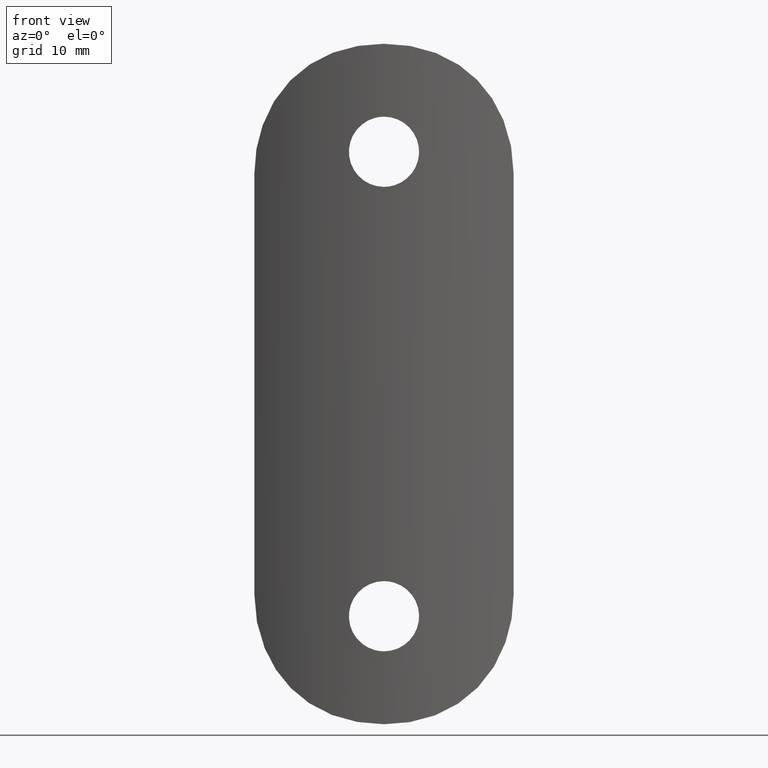
[diagram: clean part render]
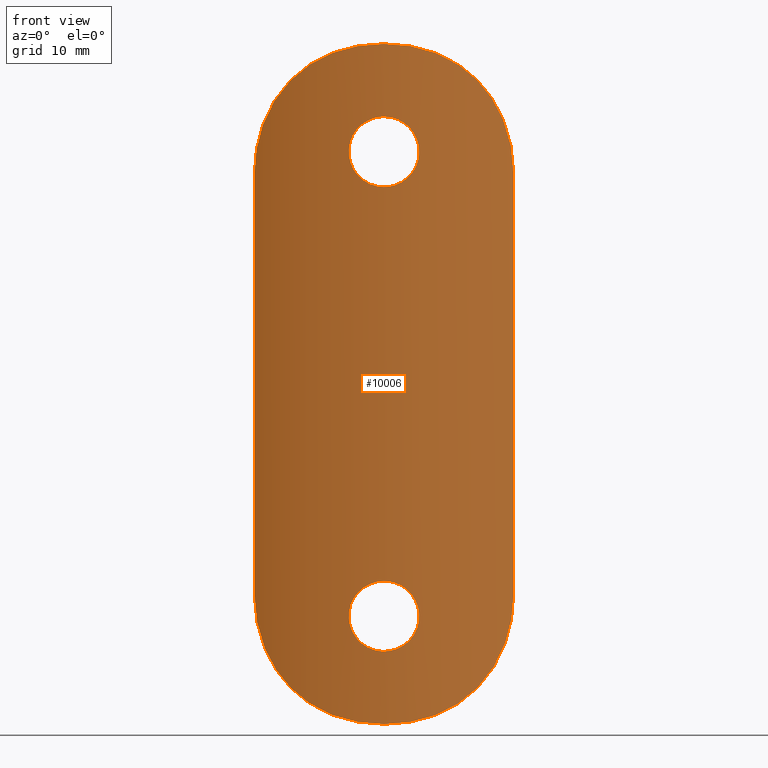
[diagram: same view with one face highlighted and labeled with its STEP entity id]
A machine part, front view. The second image highlights one B-rep face of the part: STEP entity #10006.
In plain terms, the highlighted cylindrical surface (partial cylindrical patch) has radius 25.2 mm, axis along (-0, -0, -1).
Its self-contained STEP definition (entity closure, byte-faithful):
#29 = CARTESIAN_POINT ( 'NONE',  ( 8.070018011858289600, -2.675033751623812500, -28.68965972254910900 ) ) ;
#81 = CARTESIAN_POINT ( 'NONE',  ( -3.971604063489195800, -3.688143116275659500, -30.94069939061653000 ) ) ;
#365 = CARTESIAN_POINT ( 'NONE',  ( 2.448293202745678500, -3.881237321424444000, 23.64783916201493200 ) ) ;
#416 = CARTESIAN_POINT ( 'NONE',  ( 2.584372539048636500, -3.867409336745677000, 19.51800404352745500 ) ) ;
#432 = CARTESIAN_POINT ( 'NONE',  ( 3.228884920486573100, -3.792319949075413800, -21.07338228239292700 ) ) ;
#440 = B_SPLINE_CURVE_WITH_KNOTS ( 'NONE', 3,
 ( #9769, #14203, #13107, #4400, #14156, #7628, #12054, #3225, #8713, #9815, #2249, #29, #4357, #2289, #5740, #3444, #6664, #12278, #9949, #10993, #13362, #9904, #11174, #11088 ),
 .UNSPECIFIED., .F., .F.,
 ( 4, 2, 2, 2, 2, 2, 2, 2, 2, 2, 2, 4 ),
 ( 6.655147492005019600E-020, 0.002404719628250255700, 0.003607079442375383300, 0.004809439256500511400, 0.007214158884750770900, 0.008416518698875899400, 0.009618878513001031400, 0.01082123832712616000, 0.01202359814125129000, 0.01442831776950155100, 0.01683303739775180900, 0.01923775702600207000 ),
 .UNSPECIFIED. ) ;
#461 = CARTESIAN_POINT ( 'NONE',  ( 1.442084102744212400, -3.959475360728427900, 24.42031980687430700 ) ) ;
#474 = CARTESIAN_POINT ( 'NONE',  ( 1.047374103152517900, -3.978995375030609100, -18.41603188571118800 ) ) ;
#486 = ORIENTED_EDGE ( 'NONE', *, *, #4471, .T. ) ;
#497 = VERTEX_POINT ( 'NONE', #9025 ) ;
#501 = CARTESIAN_POINT ( 'NONE',  ( -7.461081916255326800, -2.872280406970613200, 29.18403922431020400 ) ) ;
#552 = CARTESIAN_POINT ( 'NONE',  ( -10.86122045950696200, -1.541448732340302300, 24.94936520890066900 ) ) ;
#557 = CARTESIAN_POINT ( 'NONE',  ( 2.820323020819258000, -3.841965843614789700, 23.12909165509455500 ) ) ;
#559 = CARTESIAN_POINT ( 'NONE',  ( 3.980101605057122000E-016, -4.000000000000001800, -18.25000000000000000 ) ) ;
#633 = CARTESIAN_POINT ( 'NONE',  ( 11.71599125575619200, -1.111027788990791800, 22.28988272980836200 ) ) ;
#657 = CARTESIAN_POINT ( 'NONE',  ( -0.2149243243844239400, -4.000000000000000900, -24.75000000000000400 ) ) ;
#708 = CARTESIAN_POINT ( 'NONE',  ( -0.4273856275697969200, -3.997251474127010400, -24.72888809123269000 ) ) ;
#841 = CARTESIAN_POINT ( 'NONE',  ( 6.160525285184449200, -3.245138553629468300, 30.04837552026781500 ) ) ;
#896 = CARTESIAN_POINT ( 'NONE',  ( 8.909917177937140700, -2.374086248459208000, 27.86910506856552800 ) ) ;
#1023 = CARTESIAN_POINT ( 'NONE',  ( -11.99999999999999800, -0.9594223751432680000, -20.31274261880711800 ) ) ;
#1059 = VERTEX_POINT ( 'NONE', #3682 ) ;
#1113 = CARTESIAN_POINT ( 'NONE',  ( 11.99999999999999800, -0.9594223751432641200, 19.50000000000000000 ) ) ;
#1152 = CARTESIAN_POINT ( 'NONE',  ( -4.060108814589744000E-015, -4.000000000000000000, -31.50000000000000000 ) ) ;
#1195 = CARTESIAN_POINT ( 'NONE',  ( -7.490020082081475300, -2.871071223889374700, -29.18960834183335300 ) ) ;
#1473 = CARTESIAN_POINT ( 'NONE',  ( 2.921132622535350900, -3.830254687221836800, 22.94023643816554900 ) ) ;
#1556 = VERTEX_POINT ( 'NONE', #3301 ) ;
#1609 = CARTESIAN_POINT ( 'NONE',  ( -6.152177999487239600, -3.247060572112983500, 30.05227158300981600 ) ) ;
#1656 = CARTESIAN_POINT ( 'NONE',  ( -4.340547476338980600, -3.626235214990995500, 30.82211531279922700 ) ) ;
#1662 = CARTESIAN_POINT ( 'NONE',  ( 3.145745220927480100, -3.802921007966615400, 22.34413334551513600 ) ) ;
#1666 = CARTESIAN_POINT ( 'NONE',  ( -3.249847411044275000, -3.789567659892699100, -21.28283633187031000 ) ) ;
#1714 = CARTESIAN_POINT ( 'NONE',  ( -2.150080745667855900, -3.908558688004724100, -23.94631799422705100 ) ) ;
#1727 = CARTESIAN_POINT ( 'NONE',  ( 3.145789730916917400, -3.802915054760238600, -20.65637243076135100 ) ) ;
#1815 = CARTESIAN_POINT ( 'NONE',  ( 3.980101605049233400E-016, -3.999999999999999100, 18.25000000000000400 ) ) ;
#1834 = CARTESIAN_POINT ( 'NONE',  ( 11.99999999999999800, -0.9594223751432641200, 31.50000000000000000 ) ) ;
#1835 = CARTESIAN_POINT ( 'NONE',  ( -1.052288302275508500, -3.978779976237182900, 24.58220157696789000 ) ) ;
#1931 = CARTESIAN_POINT ( 'NONE',  ( -1.443071850375213800, -3.959408089172589600, 24.41972958796253200 ) ) ;
#1938 = CARTESIAN_POINT ( 'NONE',  ( -1.430077016675846200E-015, -4.000000000000000000, 31.50000000000000000 ) ) ;
#2035 = CARTESIAN_POINT ( 'NONE',  ( 10.86334236761369500, -1.540439642348692800, 24.94502513748647500 ) ) ;
#2139 = CARTESIAN_POINT ( 'NONE',  ( -12.00000000000001100, -0.9594223751432616700, 31.50000000000000000 ) ) ;
#2249 = CARTESIAN_POINT ( 'NONE',  ( 7.461081916255317900, -2.872280406970613600, -29.18403922431020800 ) ) ;
#2289 = CARTESIAN_POINT ( 'NONE',  ( 8.904526323337204700, -2.376129620349473300, -27.87499940745014000 ) ) ;
#2421 = CARTESIAN_POINT ( 'NONE',  ( -9.655711293404406700, -2.078237200720401700, -26.96281491189223800 ) ) ;
#2447 = CARTESIAN_POINT ( 'NONE',  ( -3.237414360353812700E-016, -3.999999999999998200, -24.74999999999999600 ) ) ;
#2491 = CARTESIAN_POINT ( 'NONE',  ( 11.99999999999999800, -0.9594223751432641200, -19.50000000000000400 ) ) ;
#2566 = CARTESIAN_POINT ( 'NONE',  ( -1.430077016675846200E-015, -4.000000000000000000, 31.50000000000000000 ) ) ;
#2567 = CARTESIAN_POINT ( 'NONE',  ( 3.228884920486573100, -3.792319949075414700, 21.07338228239293800 ) ) ;
#2674 = CARTESIAN_POINT ( 'NONE',  ( 0.4278075634889013100, -3.997231405282156500, -18.27127346366641800 ) ) ;
#2677 = EDGE_CURVE ( 'NONE', #12522, #7204, #5048, .T. ) ;
#2701 = CARTESIAN_POINT ( 'NONE',  ( -8.904526323337210100, -2.376129620349471500, 27.87499940745014000 ) ) ;
#2724 = CARTESIAN_POINT ( 'NONE',  ( 2.448293202745678100, -3.881237321424443100, -23.64783916201492900 ) ) ;
#2725 = CARTESIAN_POINT ( 'NONE',  ( -1.047883688939818000, -3.978965056323733800, 18.41629329927628000 ) ) ;
#2760 = CARTESIAN_POINT ( 'NONE',  ( -3.084362919498955700, -3.810666350970388600, -22.54620186323490900 ) ) ;
#2775 = CARTESIAN_POINT ( 'NONE',  ( 2.148846319067987800, -3.908665131329721800, -23.94740927707720600 ) ) ;
#2808 = CARTESIAN_POINT ( 'NONE',  ( -2.821828598245091700, -3.841791516722734100, -23.12630701370350600 ) ) ;
#2820 = CARTESIAN_POINT ( 'NONE',  ( 1.630984209508580700, -3.947783067614378400, -18.68092628248565700 ) ) ;
#2907 = CARTESIAN_POINT ( 'NONE',  ( -1.628195372474675200, -3.947974969575132100, -18.67917581154562300 ) ) ;
#2962 = CARTESIAN_POINT ( 'NONE',  ( -2.583679911184205500, -3.867482257557316200, -19.51704657700166500 ) ) ;
#3032 = CARTESIAN_POINT ( 'NONE',  ( -0.8474431673034958900, -3.986623044847432200, 24.64487151701752800 ) ) ;
#3087 = CARTESIAN_POINT ( 'NONE',  ( -2.586224168663152400, -3.867219302393778900, 23.47965544732352300 ) ) ;
#3136 = CARTESIAN_POINT ( 'NONE',  ( 11.41391696054181700, -1.267241225314089400, 23.45119720436173300 ) ) ;
#3160 = LINE ( 'NONE', #1834, #6238 ) ;
#3217 = ORIENTED_EDGE ( 'NONE', *, *, #13697, .F. ) ;
#3225 = CARTESIAN_POINT ( 'NONE',  ( 5.452304225355308500, -3.414662459839250500, -30.40220668051475900 ) ) ;
#3245 = CARTESIAN_POINT ( 'NONE',  ( 7.490020082081473500, -2.871071223889372100, 29.18960834183335600 ) ) ;
#3289 = ORIENTED_EDGE ( 'NONE', *, *, #4102, .T. ) ;
#3301 = CARTESIAN_POINT ( 'NONE',  ( -3.813032804843664200E-016, -3.999999999999998200, 24.75000000000000000 ) ) ;
#3317 = CARTESIAN_POINT ( 'NONE',  ( -11.41391696054182100, -1.267241225314089200, -23.45119720436174000 ) ) ;
#3342 = VERTEX_POINT ( 'NONE', #8508 ) ;
#3373 = B_SPLINE_CURVE_WITH_KNOTS ( 'NONE', 3,
 ( #9335, #8208, #9290, #12643, #2725, #10377, #7212, #8303, #8405, #11829, #9587, #6356, #10678, #11685, #8589, #14022, #9687, #11783, #12988, #6405, #8445, #5261, #4227, #3087, #7495, #6302, #9638, #12892, #1931, #1835, #3032, #13976, #6450, #11739 ),
 .UNSPECIFIED., .F., .F.,
 ( 4, 2, 2, 2, 2, 2, 2, 2, 2, 2, 2, 2, 2, 2, 2, 2, 4 ),
 ( 0.01017157156450930100, 0.01080714202623246500, 0.01144271248795562800, 0.01207828294967879300, 0.01271385341140195700, 0.01334942387312512000, 0.01398499433484828300, 0.01462056479657144700, 0.01525613525829460800, 0.01589170572001777400, 0.01652727618174093500, 0.01716284664346409700, 0.01779841710518726200, 0.01843398756691042400, 0.01906955802863358900, 0.01970512849035675100, 0.02034069895207991600 ),
 .UNSPECIFIED. ) ;
#3444 = CARTESIAN_POINT ( 'NONE',  ( 9.647921971715934600, -2.081454063450988400, -26.97324947382548300 ) ) ;
#3486 = AXIS2_PLACEMENT_3D ( 'NONE', #13397, #11115, #5683 ) ;
#3492 = CARTESIAN_POINT ( 'NONE',  ( -5.457864477615493600, -3.413351149534353800, -30.39947326146852500 ) ) ;
#3578 = CARTESIAN_POINT ( 'NONE',  ( -1.611978675888157100, -3.960820225964582600, 31.43672536682949600 ) ) ;
#3628 = B_SPLINE_CURVE_WITH_KNOTS ( 'NONE', 3,
 ( #6203, #10588, #11541, #633, #9395, #3136, #4327, #2035, #8551, #7459, #11978, #14029, #896, #13931, #3245, #841, #10879, #4289, #9696, #12900, #12949, #8646, #12850, #1938 ),
 .UNSPECIFIED., .F., .F.,
 ( 4, 2, 2, 2, 2, 2, 2, 2, 2, 2, 2, 4 ),
 ( 0.0000000000000000000, 0.002403755772613356100, 0.003605633658920034400, 0.004807511545226713200, 0.007211267317840058500, 0.008413145204146725900, 0.009615023090453391600, 0.01201877886306673300, 0.01442253463568007400, 0.01562441252198674400, 0.01682629040829341700, 0.01923004618090676200 ),
 .UNSPECIFIED. ) ;
#3682 = CARTESIAN_POINT ( 'NONE',  ( -4.060108814589744000E-015, -4.000000000000000000, -31.50000000000000000 ) ) ;
#3726 = CARTESIAN_POINT ( 'NONE',  ( 1.048575703819335700, -3.978945489830351800, 24.58356341383954200 ) ) ;
#3745 = CARTESIAN_POINT ( 'NONE',  ( 0.8420286645357342200, -3.986786607900433000, -24.64617266009791800 ) ) ;
#3772 = CARTESIAN_POINT ( 'NONE',  ( 0.2149759820200501700, -4.000000000000003600, 24.75000000000000000 ) ) ;
#3791 = CARTESIAN_POINT ( 'NONE',  ( 1.048575703819336000, -3.978945489830352700, -24.58356341383954200 ) ) ;
#3840 = CARTESIAN_POINT ( 'NONE',  ( 3.980101605057122000E-016, -4.000000000000001800, -18.25000000000000000 ) ) ;
#4081 = CARTESIAN_POINT ( 'NONE',  ( -3.228577495374705700, -3.792359537829471900, -21.07144474021118100 ) ) ;
#4102 = EDGE_CURVE ( 'NONE', #3342, #1059, #4750, .T. ) ;
#4227 = CARTESIAN_POINT ( 'NONE',  ( -2.821828598245089500, -3.841791516722735400, 23.12630701370351400 ) ) ;
#4289 = CARTESIAN_POINT ( 'NONE',  ( 4.349982336097550500, -3.624564216562080600, 30.81886323569778700 ) ) ;
#4327 = CARTESIAN_POINT ( 'NONE',  ( 11.28833695153357500, -1.330832197223991600, 23.83377837251705600 ) ) ;
#4357 = CARTESIAN_POINT ( 'NONE',  ( 8.358390092009223300, -2.575234846123539700, -28.42775120624607900 ) ) ;
#4399 = FACE_OUTER_BOUND ( 'NONE', #11576, .T. ) ;
#4400 = CARTESIAN_POINT ( 'NONE',  ( 2.792776424909799700, -3.847888878390024500, -31.23648069177836100 ) ) ;
#4471 = EDGE_CURVE ( 'NONE', #9728, #12522, #3628, .T. ) ;
#4532 = CARTESIAN_POINT ( 'NONE',  ( -9.168061832152750100, -2.274576247429996600, -27.57751229447801600 ) ) ;
#4668 = CARTESIAN_POINT ( 'NONE',  ( -2.792776424909805000, -3.847888878390025800, 31.23648069177835400 ) ) ;
#4750 = B_SPLINE_CURVE_WITH_KNOTS ( 'NONE', 3,
 ( #5492, #1023, #10765, #7684, #10866, #3317, #10959, #6446, #14067, #7533, #2421, #4532, #5745, #13323, #1195, #7776, #3492, #8810, #81, #6765, #8852, #5664, #8892, #1152 ),
 .UNSPECIFIED., .F., .F.,
 ( 4, 2, 2, 2, 2, 2, 2, 2, 2, 2, 2, 4 ),
 ( 1.084202172485504400E-019, 0.002403755772613352200, 0.003605633658920027900, 0.004807511545226703600, 0.007211267317840045500, 0.008413145204146713800, 0.009615023090453381200, 0.01201877886306672300, 0.01442253463568006000, 0.01562441252198673200, 0.01682629040829340700, 0.01923004618090675500 ),
 .UNSPECIFIED. ) ;
#4818 = CARTESIAN_POINT ( 'NONE',  ( 2.819586614385453300, -3.842043119532628100, 19.86990162381512100 ) ) ;
#4845 = VERTEX_POINT ( 'NONE', #2491 ) ;
#4860 = CARTESIAN_POINT ( 'NONE',  ( -0.8120060809979359200, -4.000000000000002700, 31.49999999999999300 ) ) ;
#4865 = CARTESIAN_POINT ( 'NONE',  ( 0.8447587679019650200, -3.986700308431998100, 18.35451482568179000 ) ) ;
#4881 = CARTESIAN_POINT ( 'NONE',  ( 0.2122230471317226300, -4.000000000000000900, -18.25000000000000400 ) ) ;
#4909 = CARTESIAN_POINT ( 'NONE',  ( -9.647921971715938100, -2.081454063450993300, 26.97324947382547900 ) ) ;
#4967 = CARTESIAN_POINT ( 'NONE',  ( -3.813032804843664200E-016, -3.999999999999998200, 24.75000000000000000 ) ) ;
#5038 = CARTESIAN_POINT ( 'NONE',  ( 3.084330026343578400, -3.810670690545057100, -20.45366553155928100 ) ) ;
#5048 = B_SPLINE_CURVE_WITH_KNOTS ( 'NONE', 3,
 ( #2566, #4860, #3578, #4668, #12379, #9126, #1656, #11458, #1609, #13609, #501, #9265, #8182, #2701, #7134, #4909, #13655, #12569, #552, #6024, #10351, #11982, #13083, #14177 ),
 .UNSPECIFIED., .F., .F.,
 ( 4, 2, 2, 2, 2, 2, 2, 2, 2, 2, 2, 4 ),
 ( 3.487617001206990300E-018, 0.002404719628250263100, 0.003607079442375393300, 0.004809439256500523500, 0.007214158884750779600, 0.008416518698875908100, 0.009618878513001033100, 0.01082123832712616300, 0.01202359814125129400, 0.01442831776950155400, 0.01683303739775181600, 0.01923775702600207700 ),
 .UNSPECIFIED. ) ;
#5231 = ORIENTED_EDGE ( 'NONE', *, *, #8174, .T. ) ;
#5261 = CARTESIAN_POINT ( 'NONE',  ( -2.921508016636387600, -3.830212081551999800, 22.93966102487552300 ) ) ;
#5492 = CARTESIAN_POINT ( 'NONE',  ( -12.00000000000001100, -0.9594223751432616700, -19.50000000000000400 ) ) ;
#5526 = VERTEX_POINT ( 'NONE', #11928 ) ;
#5664 = CARTESIAN_POINT ( 'NONE',  ( -1.614628932622137000, -3.960784208731629200, -31.43669996251908200 ) ) ;
#5683 = DIRECTION ( 'NONE',  ( -1.000000000000000000, 0.0000000000000000000, 0.0000000000000000000 ) ) ;
#5740 = CARTESIAN_POINT ( 'NONE',  ( 9.162288598564817500, -2.276817699967490900, -27.58415630336390800 ) ) ;
#5745 = CARTESIAN_POINT ( 'NONE',  ( -8.909917177937144200, -2.374086248459204000, -27.86910506856552800 ) ) ;
#5888 = CARTESIAN_POINT ( 'NONE',  ( 3.145789730916917400, -3.802915054760238600, 20.65637243076135100 ) ) ;
#5925 = CARTESIAN_POINT ( 'NONE',  ( 1.630984209508580700, -3.947783067614378400, 18.68092628248566100 ) ) ;
#5926 = FACE_BOUND ( 'NONE', #11631, .T. ) ;
#5947 = CARTESIAN_POINT ( 'NONE',  ( 2.146749842079460600, -3.908855626522028900, -19.05052656596651100 ) ) ;
#5975 = CARTESIAN_POINT ( 'NONE',  ( 3.249921466792945200, -3.789558028622972400, 21.71342183589956300 ) ) ;
#5999 = CARTESIAN_POINT ( 'NONE',  ( 3.229257522345796400, -3.792272161209743000, -21.92446431460341200 ) ) ;
#6024 = CARTESIAN_POINT ( 'NONE',  ( -11.42733513922664000, -1.262315373341881700, 23.47153338559775200 ) ) ;
#6077 = CARTESIAN_POINT ( 'NONE',  ( -0.4232016262251696600, -3.997320671551197100, -18.27057619256268200 ) ) ;
#6093 = CARTESIAN_POINT ( 'NONE',  ( 3.249921466792945200, -3.789558028622972000, -21.71342183589956300 ) ) ;
#6128 = CARTESIAN_POINT ( 'NONE',  ( -1.631637408973497700, -3.947752285963282300, -24.31885370546396900 ) ) ;
#6143 = CARTESIAN_POINT ( 'NONE',  ( 2.449887203856966300, -3.881092847927759800, -19.35372236724093800 ) ) ;
#6178 = CARTESIAN_POINT ( 'NONE',  ( -2.819535138527144500, -3.842050439590970700, -19.86974610448299600 ) ) ;
#6203 = CARTESIAN_POINT ( 'NONE',  ( 11.99999999999999800, -0.9594223751432641200, 19.50000000000000000 ) ) ;
#6238 = VECTOR ( 'NONE', #13874, 1000.000000000000000 ) ;
#6302 = CARTESIAN_POINT ( 'NONE',  ( -2.150080745667852300, -3.908558688004723200, 23.94631799422705100 ) ) ;
#6356 = CARTESIAN_POINT ( 'NONE',  ( -2.819535138527144500, -3.842050439590969800, 19.86974610448300300 ) ) ;
#6357 = EDGE_LOOP ( 'NONE', ( #5231, #11805 ) ) ;
#6402 = CARTESIAN_POINT ( 'NONE',  ( -1.430077016675846200E-015, -4.000000000000000000, 31.50000000000000000 ) ) ;
#6405 = CARTESIAN_POINT ( 'NONE',  ( -3.146823393865464600, -3.802784378313663000, 22.33958662307775400 ) ) ;
#6446 = CARTESIAN_POINT ( 'NONE',  ( -10.86334236761369700, -1.540439642348695200, -24.94502513748647800 ) ) ;
#6450 = CARTESIAN_POINT ( 'NONE',  ( -0.2149243243844244400, -4.000000000000004400, 24.75000000000000400 ) ) ;
#6664 = CARTESIAN_POINT ( 'NONE',  ( 9.876756645886438000, -1.984972568899343100, -26.65162954762824300 ) ) ;
#6711 = B_SPLINE_CURVE_WITH_KNOTS ( 'NONE', 3,
 ( #559, #12717, #6077, #8434, #10509, #9527, #2907, #9370, #7244, #13710, #2962, #6178, #10609, #8337, #13812, #4081, #1666, #7142, #13662, #10565, #2760, #9316, #2808, #11625, #8238, #1714, #7294, #6128, #12775, #11722, #10406, #708, #657, #11571 ),
 .UNSPECIFIED., .F., .F.,
 ( 4, 2, 2, 2, 2, 2, 2, 2, 2, 2, 2, 2, 2, 2, 2, 2, 4 ),
 ( 0.01017157156450930100, 0.01080714202623246500, 0.01144271248795562800, 0.01207828294967879100, 0.01271385341140195500, 0.01334942387312511600, 0.01398499433484828000, 0.01462056479657144300, 0.01525613525829460700, 0.01589170572001777000, 0.01652727618174093500, 0.01716284664346409700, 0.01779841710518725900, 0.01843398756691042000, 0.01906955802863358500, 0.01970512849035675100, 0.02034069895207991200 ),
 .UNSPECIFIED. ) ;
#6765 = CARTESIAN_POINT ( 'NONE',  ( -3.196476755381119100, -3.799516854644442900, -31.14900833836189500 ) ) ;
#6941 = ORIENTED_EDGE ( 'NONE', *, *, #9796, .F. ) ;
#7004 = CARTESIAN_POINT ( 'NONE',  ( 2.921303650117720100, -3.830236217145516000, 20.05989843585232900 ) ) ;
#7018 = CARTESIAN_POINT ( 'NONE',  ( 2.921303650117720100, -3.830236217145515500, -20.05989843585232200 ) ) ;
#7046 = CARTESIAN_POINT ( 'NONE',  ( 2.449887203856966300, -3.881092847927760700, 19.35372236724093800 ) ) ;
#7065 = CARTESIAN_POINT ( 'NONE',  ( 1.982795539817884300, -3.922492403317331600, -18.91624150437298700 ) ) ;
#7134 = CARTESIAN_POINT ( 'NONE',  ( -9.162288598564821000, -2.276817699967493600, 27.58415630336389800 ) ) ;
#7142 = CARTESIAN_POINT ( 'NONE',  ( -3.250150967301145500, -3.789528181083724200, -21.71257220791566000 ) ) ;
#7157 = CARTESIAN_POINT ( 'NONE',  ( 1.442084102744212800, -3.959475360728428300, -24.42031980687431100 ) ) ;
#7204 = VERTEX_POINT ( 'NONE', #13042 ) ;
#7212 = CARTESIAN_POINT ( 'NONE',  ( -1.628195372474674900, -3.947974969575128500, 18.67917581154562300 ) ) ;
#7244 = CARTESIAN_POINT ( 'NONE',  ( -2.146681953387287800, -3.908851214023944200, -19.05068869743568900 ) ) ;
#7294 = CARTESIAN_POINT ( 'NONE',  ( -1.986728131441103400, -3.922193315916383300, -24.08090840188300100 ) ) ;
#7296 = ORIENTED_EDGE ( 'NONE', *, *, #13598, .F. ) ;
#7326 = FACE_BOUND ( 'NONE', #6357, .T. ) ;
#7434 = EDGE_CURVE ( 'NONE', #10415, #1556, #3373, .T. ) ;
#7459 = CARTESIAN_POINT ( 'NONE',  ( 9.884724229222927100, -1.981558221754679200, 26.63982154834023300 ) ) ;
#7495 = CARTESIAN_POINT ( 'NONE',  ( -2.449270791768774400, -3.881141106226755800, 23.64671645318125600 ) ) ;
#7533 = CARTESIAN_POINT ( 'NONE',  ( -9.884724229222934300, -1.981558221754680100, -26.63982154834024700 ) ) ;
#7594 = B_SPLINE_CURVE_WITH_KNOTS ( 'NONE', 3,
 ( #4967, #3772, #12624, #10356, #3726, #461, #13518, #13469, #9270, #365, #10312, #557, #1473, #11320, #1662, #9129, #5975, #12427, #2567, #5888, #11413, #7004, #4818, #416, #7046, #8097, #9176, #5925, #13565, #8142, #4865, #12521, #13612, #1815 ),
 .UNSPECIFIED., .F., .F.,
 ( 4, 2, 2, 2, 2, 2, 2, 2, 2, 2, 2, 2, 2, 2, 2, 2, 4 ),
 ( 2.630205509394695800E-019, 0.0006357232227818314300, 0.001271446445563662600, 0.001907169668345493500, 0.002542892891127325300, 0.003178616113909156400, 0.003814339336690987100, 0.004450062559472818200, 0.005085785782254649700, 0.005721509005036480400, 0.006357232227818311900, 0.006992955450600143500, 0.007628678673381973300, 0.008264401896163805700, 0.008900125118945638100, 0.009535848341727468800, 0.01017157156450930100 ),
 .UNSPECIFIED. ) ;
#7628 = CARTESIAN_POINT ( 'NONE',  ( 3.957172420178758400, -3.690432382476725800, -30.94504960027833800 ) ) ;
#7684 = CARTESIAN_POINT ( 'NONE',  ( -11.71599125575619700, -1.111027788990796700, -22.28988272980836900 ) ) ;
#7757 = B_SPLINE_CURVE_WITH_KNOTS ( 'NONE', 3,
 ( #2447, #9334, #9289, #3745, #3791, #7157, #9196, #11432, #2775, #2724, #8302, #11585, #11386, #8249, #10376, #5999, #6093, #12494, #432, #1727, #5038, #7018, #9383, #12688, #6143, #5947, #7065, #2820, #10423, #474, #8158, #2674, #4881, #3840 ),
 .UNSPECIFIED., .F., .F.,
 ( 4, 2, 2, 2, 2, 2, 2, 2, 2, 2, 2, 2, 2, 2, 2, 2, 4 ),
 ( 2.787408239283590600E-019, 0.0006357232227818316500, 0.001271446445563662600, 0.001907169668345494000, 0.002542892891127325300, 0.003178616113909156400, 0.003814339336690987900, 0.004450062559472819100, 0.005085785782254649700, 0.005721509005036482100, 0.006357232227818313700, 0.006992955450600144400, 0.007628678673381975900, 0.008264401896163807400, 0.008900125118945638100, 0.009535848341727470500, 0.01017157156450930100 ),
 .UNSPECIFIED. ) ;
#7776 = CARTESIAN_POINT ( 'NONE',  ( -6.160525285184451900, -3.245138553629470100, -30.04837552026780800 ) ) ;
#8097 = CARTESIAN_POINT ( 'NONE',  ( 2.146749842079461100, -3.908855626522030700, 19.05052656596652500 ) ) ;
#8142 = CARTESIAN_POINT ( 'NONE',  ( 1.047374103152517900, -3.978995375030611700, 18.41603188571118800 ) ) ;
#8158 = CARTESIAN_POINT ( 'NONE',  ( 0.8447587679019649100, -3.986700308431997200, -18.35451482568178200 ) ) ;
#8174 = EDGE_CURVE ( 'NONE', #1556, #10415, #7594, .T. ) ;
#8182 = CARTESIAN_POINT ( 'NONE',  ( -8.358390092009225100, -2.575234846123539700, 28.42775120624607900 ) ) ;
#8208 = CARTESIAN_POINT ( 'NONE',  ( -0.2121720510123541700, -4.000000000000001800, 18.25000000000001100 ) ) ;
#8238 = CARTESIAN_POINT ( 'NONE',  ( -2.449270791768777900, -3.881141106226754900, -23.64671645318124500 ) ) ;
#8249 = CARTESIAN_POINT ( 'NONE',  ( 3.083254818959087400, -3.810801770974805900, -22.54920756651177900 ) ) ;
#8302 = CARTESIAN_POINT ( 'NONE',  ( 2.582741924261363000, -3.867583038801238900, -23.48434012082718800 ) ) ;
#8303 = CARTESIAN_POINT ( 'NONE',  ( -1.983175156733533400, -3.922473634955616200, 18.91638130312691900 ) ) ;
#8337 = CARTESIAN_POINT ( 'NONE',  ( -3.082958616690007100, -3.810840531673459700, -20.44964428955484000 ) ) ;
#8405 = CARTESIAN_POINT ( 'NONE',  ( -2.146681953387287400, -3.908851214023945100, 19.05068869743568200 ) ) ;
#8434 = CARTESIAN_POINT ( 'NONE',  ( -0.8429197709325543200, -3.986773411876159700, -18.35392879860394200 ) ) ;
#8445 = CARTESIAN_POINT ( 'NONE',  ( -3.084362919498954400, -3.810666350970386000, 22.54620186323492300 ) ) ;
#8508 = CARTESIAN_POINT ( 'NONE',  ( -12.00000000000001100, -0.9594223751432616700, -19.50000000000000400 ) ) ;
#8516 = CYLINDRICAL_SURFACE ( 'NONE', #3486, 25.19999999999999900 ) ;
#8551 = CARTESIAN_POINT ( 'NONE',  ( 10.51403950076352900, -1.706432111569439900, 25.64657530919565100 ) ) ;
#8589 = CARTESIAN_POINT ( 'NONE',  ( -3.145632852480083800, -3.802934665138286700, 20.65598210224505100 ) ) ;
#8646 = CARTESIAN_POINT ( 'NONE',  ( 1.614628932622133000, -3.960784208731628700, 31.43669996251907900 ) ) ;
#8713 = CARTESIAN_POINT ( 'NONE',  ( 6.152177999487236100, -3.247060572112986600, -30.05227158300981600 ) ) ;
#8810 = CARTESIAN_POINT ( 'NONE',  ( -4.349982336097554900, -3.624564216562081500, -30.81886323569778700 ) ) ;
#8852 = CARTESIAN_POINT ( 'NONE',  ( -2.801740797750726500, -3.846921380667203600, -31.23474568857012600 ) ) ;
#8892 = CARTESIAN_POINT ( 'NONE',  ( -0.8123569663187918400, -4.000000000000002700, -31.50000000000001400 ) ) ;
#9025 = CARTESIAN_POINT ( 'NONE',  ( -3.237414360353812700E-016, -3.999999999999998200, -24.74999999999999600 ) ) ;
#9126 = CARTESIAN_POINT ( 'NONE',  ( -3.957172420178762400, -3.690432382476723600, 30.94504960027833100 ) ) ;
#9129 = CARTESIAN_POINT ( 'NONE',  ( 3.229257522345796000, -3.792272161209741600, 21.92446431460341200 ) ) ;
#9176 = CARTESIAN_POINT ( 'NONE',  ( 1.982795539817884300, -3.922492403317332500, 18.91624150437298700 ) ) ;
#9196 = CARTESIAN_POINT ( 'NONE',  ( 1.628683084157501300, -3.947936878248986800, -24.32045740492953100 ) ) ;
#9265 = CARTESIAN_POINT ( 'NONE',  ( -8.070018011858294900, -2.675033751623812100, 28.68965972254910600 ) ) ;
#9270 = CARTESIAN_POINT ( 'NONE',  ( 2.148846319067988300, -3.908665131329722700, 23.94740927707721700 ) ) ;
#9289 = CARTESIAN_POINT ( 'NONE',  ( 0.4263147010909994500, -3.997251589795385800, -24.72888068139426600 ) ) ;
#9290 = CARTESIAN_POINT ( 'NONE',  ( -0.4232016262251697100, -3.997320671551197100, 18.27057619256267900 ) ) ;
#9316 = CARTESIAN_POINT ( 'NONE',  ( -2.921508016636392900, -3.830212081552002400, -22.93966102487550900 ) ) ;
#9334 = CARTESIAN_POINT ( 'NONE',  ( 0.2149759820200501900, -4.000000000000000000, -24.74999999999999600 ) ) ;
#9335 = CARTESIAN_POINT ( 'NONE',  ( 3.980101605049233400E-016, -3.999999999999999100, 18.25000000000000400 ) ) ;
#9370 = CARTESIAN_POINT ( 'NONE',  ( -1.983175156733533000, -3.922473634955619300, -18.91638130312691100 ) ) ;
#9383 = CARTESIAN_POINT ( 'NONE',  ( 2.819586614385453300, -3.842043119532631200, -19.86990162381511700 ) ) ;
#9395 = CARTESIAN_POINT ( 'NONE',  ( 11.62757998105686100, -1.157410682874770100, 22.67928499084951000 ) ) ;
#9527 = CARTESIAN_POINT ( 'NONE',  ( -1.439026527532556000, -3.959641177611721300, -18.57826936650688800 ) ) ;
#9587 = CARTESIAN_POINT ( 'NONE',  ( -2.583679911184205500, -3.867482257557314000, 19.51704657700166800 ) ) ;
#9638 = CARTESIAN_POINT ( 'NONE',  ( -1.986728131441098500, -3.922193315916382400, 24.08090840188300800 ) ) ;
#9687 = CARTESIAN_POINT ( 'NONE',  ( -3.249847411044275000, -3.789567659892699100, 21.28283633187031800 ) ) ;
#9696 = CARTESIAN_POINT ( 'NONE',  ( 3.971604063489190500, -3.688143116275659500, 30.94069939061651900 ) ) ;
#9728 = VERTEX_POINT ( 'NONE', #1113 ) ;
#9769 = CARTESIAN_POINT ( 'NONE',  ( -4.060108814589744000E-015, -4.000000000000000000, -31.50000000000000000 ) ) ;
#9783 = CARTESIAN_POINT ( 'NONE',  ( 3.980101605049233400E-016, -3.999999999999999100, 18.25000000000000400 ) ) ;
#9796 = EDGE_CURVE ( 'NONE', #5526, #497, #6711, .T. ) ;
#9815 = CARTESIAN_POINT ( 'NONE',  ( 7.140214577833963200, -2.969699045932935500, -29.41628354052732400 ) ) ;
#9816 = ORIENTED_EDGE ( 'NONE', *, *, #11960, .T. ) ;
#9904 = CARTESIAN_POINT ( 'NONE',  ( 11.92832071221263000, -0.9986732132548439300, -21.11307492578390900 ) ) ;
#9949 = CARTESIAN_POINT ( 'NONE',  ( 10.86122045950696200, -1.541448732340300100, -24.94936520890068700 ) ) ;
#10006 = ADVANCED_FACE ( 'NONE', ( #7326, #4399, #5926 ), #8516, .T. ) ;
#10312 = CARTESIAN_POINT ( 'NONE',  ( 2.582741924261361200, -3.867583038801238400, 23.48434012082719500 ) ) ;
#10351 = CARTESIAN_POINT ( 'NONE',  ( -11.64367335420694800, -1.149290777624471400, 22.68971465014288600 ) ) ;
#10356 = CARTESIAN_POINT ( 'NONE',  ( 0.8420286645357338800, -3.986786607900432200, 24.64617266009791800 ) ) ;
#10376 = CARTESIAN_POINT ( 'NONE',  ( 3.145745220927481400, -3.802921007966614500, -22.34413334551512900 ) ) ;
#10377 = CARTESIAN_POINT ( 'NONE',  ( -1.439026527532555300, -3.959641177611721300, 18.57826936650688100 ) ) ;
#10404 = ORIENTED_EDGE ( 'NONE', *, *, #10872, .T. ) ;
#10406 = CARTESIAN_POINT ( 'NONE',  ( -0.8474431673034974500, -3.986623044847432200, -24.64487151701752400 ) ) ;
#10415 = VERTEX_POINT ( 'NONE', #9783 ) ;
#10423 = CARTESIAN_POINT ( 'NONE',  ( 1.440851101306092700, -3.959545876498494500, -18.57907549810515500 ) ) ;
#10509 = CARTESIAN_POINT ( 'NONE',  ( -1.047883688939817500, -3.978965056323733300, -18.41629329927628000 ) ) ;
#10565 = CARTESIAN_POINT ( 'NONE',  ( -3.146823393865466400, -3.802784378313659900, -22.33958662307775000 ) ) ;
#10588 = CARTESIAN_POINT ( 'NONE',  ( 12.00000000000000000, -0.9594223751432642300, 20.31274261880712100 ) ) ;
#10609 = CARTESIAN_POINT ( 'NONE',  ( -2.919474110140167800, -3.830450432488112800, -20.05620227493280800 ) ) ;
#10678 = CARTESIAN_POINT ( 'NONE',  ( -2.919474110140167800, -3.830450432488113700, 20.05620227493281500 ) ) ;
#10695 = LINE ( 'NONE', #2139, #10865 ) ;
#10765 = CARTESIAN_POINT ( 'NONE',  ( -11.92832106730126400, -0.9986667378849012300, -21.11159825841765100 ) ) ;
#10865 = VECTOR ( 'NONE', #13991, 1000.000000000000000 ) ;
#10866 = CARTESIAN_POINT ( 'NONE',  ( -11.62757998105686000, -1.157410682874769700, -22.67928499084949900 ) ) ;
#10872 = EDGE_CURVE ( 'NONE', #1059, #4845, #440, .T. ) ;
#10879 = CARTESIAN_POINT ( 'NONE',  ( 5.457864477615489200, -3.413351149534354300, 30.39947326146851800 ) ) ;
#10959 = CARTESIAN_POINT ( 'NONE',  ( -11.28833695153357800, -1.330832197223994700, -23.83377837251706300 ) ) ;
#10993 = CARTESIAN_POINT ( 'NONE',  ( 11.42733513922664000, -1.262315373341880200, -23.47153338559776600 ) ) ;
#11088 = CARTESIAN_POINT ( 'NONE',  ( 11.99999999999999800, -0.9594223751432641200, -19.50000000000000400 ) ) ;
#11115 = DIRECTION ( 'NONE',  ( -0.0000000000000000000, -0.0000000000000000000, -1.000000000000000000 ) ) ;
#11174 = CARTESIAN_POINT ( 'NONE',  ( 12.00000000000000000, -0.9594223751432625600, -20.31273156227684500 ) ) ;
#11320 = CARTESIAN_POINT ( 'NONE',  ( 3.083254818959088300, -3.810801770974807200, 22.54920756651178200 ) ) ;
#11386 = CARTESIAN_POINT ( 'NONE',  ( 2.921132622535348700, -3.830254687221836400, -22.94023643816553800 ) ) ;
#11413 = CARTESIAN_POINT ( 'NONE',  ( 3.084330026343578400, -3.810670690545058000, 20.45366553155928100 ) ) ;
#11432 = CARTESIAN_POINT ( 'NONE',  ( 1.981823280531521900, -3.922573799389253800, -24.08456283467550600 ) ) ;
#11458 = CARTESIAN_POINT ( 'NONE',  ( -5.452304225355310200, -3.414662459839250100, 30.40220668051476600 ) ) ;
#11541 = CARTESIAN_POINT ( 'NONE',  ( 11.92832106730126400, -0.9986667378848971300, 21.11159825841765400 ) ) ;
#11571 = CARTESIAN_POINT ( 'NONE',  ( -3.237414360353812700E-016, -3.999999999999998200, -24.74999999999999600 ) ) ;
#11576 = EDGE_LOOP ( 'NONE', ( #9816, #3289, #10404, #3217, #486, #12009 ) ) ;
#11585 = CARTESIAN_POINT ( 'NONE',  ( 2.820323020819258900, -3.841965843614787900, -23.12909165509454800 ) ) ;
#11625 = CARTESIAN_POINT ( 'NONE',  ( -2.586224168663154600, -3.867219302393776200, -23.47965544732350900 ) ) ;
#11631 = EDGE_LOOP ( 'NONE', ( #7296, #6941 ) ) ;
#11685 = CARTESIAN_POINT ( 'NONE',  ( -3.082958616690007100, -3.810840531673460200, 20.44964428955484000 ) ) ;
#11722 = CARTESIAN_POINT ( 'NONE',  ( -1.052288302275508700, -3.978779976237182900, -24.58220157696787900 ) ) ;
#11739 = CARTESIAN_POINT ( 'NONE',  ( -3.813032804843664200E-016, -3.999999999999998200, 24.75000000000000000 ) ) ;
#11783 = CARTESIAN_POINT ( 'NONE',  ( -3.250150967301145500, -3.789528181083723800, 21.71257220791565600 ) ) ;
#11805 = ORIENTED_EDGE ( 'NONE', *, *, #7434, .T. ) ;
#11829 = CARTESIAN_POINT ( 'NONE',  ( -2.446445588810600900, -3.881418553941074800, 19.35005273393575500 ) ) ;
#11928 = CARTESIAN_POINT ( 'NONE',  ( 3.980101605057122000E-016, -4.000000000000001800, -18.25000000000000000 ) ) ;
#11960 = EDGE_CURVE ( 'NONE', #7204, #3342, #10695, .T. ) ;
#11978 = CARTESIAN_POINT ( 'NONE',  ( 9.655711293404406700, -2.078237200720399500, 26.96281491189224500 ) ) ;
#11982 = CARTESIAN_POINT ( 'NONE',  ( -11.92832071221262800, -0.9986732132548475900, 21.11307492578389900 ) ) ;
#12009 = ORIENTED_EDGE ( 'NONE', *, *, #2677, .T. ) ;
#12054 = CARTESIAN_POINT ( 'NONE',  ( 4.340547476338974400, -3.626235214990997300, -30.82211531279922300 ) ) ;
#12278 = CARTESIAN_POINT ( 'NONE',  ( 10.51128959650588800, -1.707769216339998700, -25.65241647618529400 ) ) ;
#12379 = CARTESIAN_POINT ( 'NONE',  ( -3.183169611241734000, -3.801205350457335100, 31.15209547169128300 ) ) ;
#12427 = CARTESIAN_POINT ( 'NONE',  ( 3.250078090663377500, -3.789537659004945000, 21.28897671941172800 ) ) ;
#12494 = CARTESIAN_POINT ( 'NONE',  ( 3.250078090663377900, -3.789537659004944100, -21.28897671941173200 ) ) ;
#12521 = CARTESIAN_POINT ( 'NONE',  ( 0.4278075634889010900, -3.997231405282157400, 18.27127346366642500 ) ) ;
#12522 = VERTEX_POINT ( 'NONE', #6402 ) ;
#12569 = CARTESIAN_POINT ( 'NONE',  ( -10.51128959650589000, -1.707769216340001600, 25.65241647618528400 ) ) ;
#12624 = CARTESIAN_POINT ( 'NONE',  ( 0.4263147010909991200, -3.997251589795386200, 24.72888068139427300 ) ) ;
#12643 = CARTESIAN_POINT ( 'NONE',  ( -0.8429197709325547700, -3.986773411876159700, 18.35392879860394500 ) ) ;
#12688 = CARTESIAN_POINT ( 'NONE',  ( 2.584372539048636500, -3.867409336745681000, -19.51800404352745500 ) ) ;
#12717 = CARTESIAN_POINT ( 'NONE',  ( -0.2121720510123537900, -3.999999999999999100, -18.24999999999999600 ) ) ;
#12775 = CARTESIAN_POINT ( 'NONE',  ( -1.443071850375214000, -3.959408089172588700, -24.41972958796253200 ) ) ;
#12850 = CARTESIAN_POINT ( 'NONE',  ( 0.8123569663187905100, -3.999999999999999100, 31.50000000000000700 ) ) ;
#12892 = CARTESIAN_POINT ( 'NONE',  ( -1.631637408973492400, -3.947752285963284100, 24.31885370546398300 ) ) ;
#12900 = CARTESIAN_POINT ( 'NONE',  ( 3.196476755381116000, -3.799516854644442900, 31.14900833836188800 ) ) ;
#12949 = CARTESIAN_POINT ( 'NONE',  ( 2.801740797750721200, -3.846921380667204000, 31.23474568857012200 ) ) ;
#12988 = CARTESIAN_POINT ( 'NONE',  ( -3.229201711786644900, -3.792278416447326400, 21.92386256549059500 ) ) ;
#13042 = CARTESIAN_POINT ( 'NONE',  ( -12.00000000000001100, -0.9594223751432616700, 19.50000000000000000 ) ) ;
#13083 = CARTESIAN_POINT ( 'NONE',  ( -12.00000000000000200, -0.9594223751432680000, 20.31273156227684100 ) ) ;
#13107 = CARTESIAN_POINT ( 'NONE',  ( 1.611978675888151400, -3.960820225964582600, -31.43672536682948900 ) ) ;
#13323 = CARTESIAN_POINT ( 'NONE',  ( -8.092293552249051600, -2.672399362741060700, -28.69793333266337500 ) ) ;
#13362 = CARTESIAN_POINT ( 'NONE',  ( 11.64367335420694400, -1.149290777624467600, -22.68971465014288900 ) ) ;
#13397 = CARTESIAN_POINT ( 'NONE',  ( -2.596251214192388800E-015, 21.19999999999999900, 31.50000000000000000 ) ) ;
#13469 = CARTESIAN_POINT ( 'NONE',  ( 1.981823280531522600, -3.922573799389254700, 24.08456283467550200 ) ) ;
#13518 = CARTESIAN_POINT ( 'NONE',  ( 1.628683084157500800, -3.947936878248985900, 24.32045740492952400 ) ) ;
#13565 = CARTESIAN_POINT ( 'NONE',  ( 1.440851101306093400, -3.959545876498496300, 18.57907549810516600 ) ) ;
#13598 = EDGE_CURVE ( 'NONE', #497, #5526, #7757, .T. ) ;
#13609 = CARTESIAN_POINT ( 'NONE',  ( -7.140214577833962300, -2.969699045932933300, 29.41628354052731400 ) ) ;
#13612 = CARTESIAN_POINT ( 'NONE',  ( 0.2122230471317230500, -4.000000000000002700, 18.25000000000001100 ) ) ;
#13655 = CARTESIAN_POINT ( 'NONE',  ( -9.876756645886436200, -1.984972568899344900, 26.65162954762823200 ) ) ;
#13662 = CARTESIAN_POINT ( 'NONE',  ( -3.229201711786645400, -3.792278416447323800, -21.92386256549058700 ) ) ;
#13697 = EDGE_CURVE ( 'NONE', #9728, #4845, #3160, .T. ) ;
#13710 = CARTESIAN_POINT ( 'NONE',  ( -2.446445588810600000, -3.881418553941073000, -19.35005273393575100 ) ) ;
#13812 = CARTESIAN_POINT ( 'NONE',  ( -3.145632852480083800, -3.802934665138286300, -20.65598210224504800 ) ) ;
#13874 = DIRECTION ( 'NONE',  ( -0.0000000000000000000, -0.0000000000000000000, -1.000000000000000000 ) ) ;
#13931 = CARTESIAN_POINT ( 'NONE',  ( 8.092293552249048000, -2.672399362741065600, 28.69793333266338900 ) ) ;
#13976 = CARTESIAN_POINT ( 'NONE',  ( -0.4273856275697958700, -3.997251474127010400, 24.72888809123269700 ) ) ;
#13991 = DIRECTION ( 'NONE',  ( -0.0000000000000000000, -0.0000000000000000000, -1.000000000000000000 ) ) ;
#14022 = CARTESIAN_POINT ( 'NONE',  ( -3.228577495374705700, -3.792359537829472800, 21.07144474021118100 ) ) ;
#14029 = CARTESIAN_POINT ( 'NONE',  ( 9.168061832152750100, -2.274576247429995300, 27.57751229447802600 ) ) ;
#14067 = CARTESIAN_POINT ( 'NONE',  ( -10.51403950076353800, -1.706432111569441000, -25.64657530919565400 ) ) ;
#14156 = CARTESIAN_POINT ( 'NONE',  ( 3.183169611241726500, -3.801205350457337800, -31.15209547169129000 ) ) ;
#14177 = CARTESIAN_POINT ( 'NONE',  ( -12.00000000000001100, -0.9594223751432616700, 19.50000000000000000 ) ) ;
#14203 = CARTESIAN_POINT ( 'NONE',  ( 0.8120060809979331400, -4.000000000000000000, -31.50000000000000000 ) ) ;